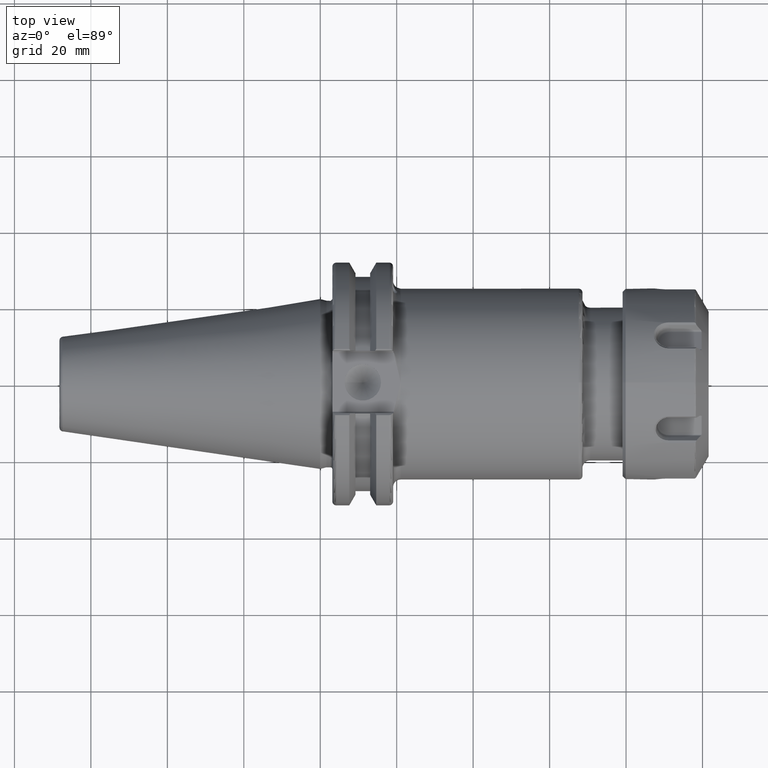
[diagram: clean part render]
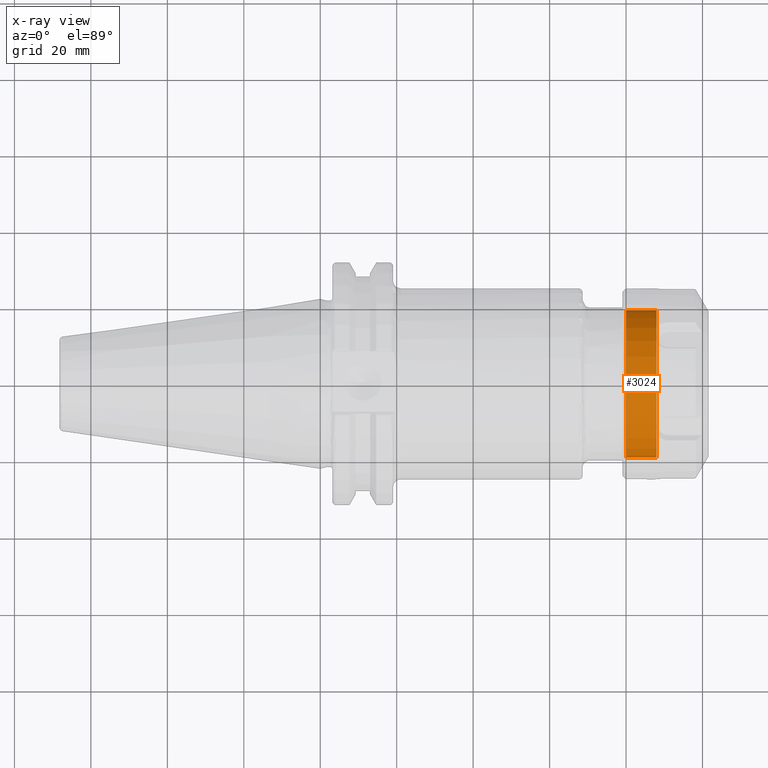
[diagram: x-ray — body ghosted, one internal face saturated and labeled with its STEP entity id]
A machine part, top view, then the same camera in x-ray: the body is ghosted and one INTERNAL B-rep face — a face not visible from any outside direction — is saturated and labeled: STEP entity #3024.
In plain terms, the highlighted cylindrical surface (bore or boss wall) has radius 19.3 mm, axis along (1, 0, 0).
Its self-contained STEP definition (entity closure, byte-faithful):
#313=CYLINDRICAL_SURFACE('',#3373,19.3);
#516=FACE_OUTER_BOUND('',#706,.T.);
#706=EDGE_LOOP('',(#2508,#2509,#2510,#2511,#2512));
#881=LINE('',#5288,#1054);
#1054=VECTOR('',#3985,19.3);
#1216=CIRCLE('',#3371,19.3);
#1217=CIRCLE('',#3372,19.3);
#1218=CIRCLE('',#3374,19.3);
#1434=VERTEX_POINT('',#5281);
#1435=VERTEX_POINT('',#5283);
#1436=VERTEX_POINT('',#5287);
#1808=EDGE_CURVE('',#1434,#1435,#1216,.T.);
#1809=EDGE_CURVE('',#1435,#1434,#1217,.T.);
#1810=EDGE_CURVE('',#1435,#1436,#881,.T.);
#1811=EDGE_CURVE('',#1436,#1436,#1218,.T.);
#2508=ORIENTED_EDGE('',*,*,#1808,.F.);
#2509=ORIENTED_EDGE('',*,*,#1809,.F.);
#2510=ORIENTED_EDGE('',*,*,#1810,.T.);
#2511=ORIENTED_EDGE('',*,*,#1811,.F.);
#2512=ORIENTED_EDGE('',*,*,#1810,.F.);
#3024=ADVANCED_FACE('',(#516),#313,.F.);
#3371=AXIS2_PLACEMENT_3D('',#5284,#3979,#3980);
#3372=AXIS2_PLACEMENT_3D('',#5285,#3981,#3982);
#3373=AXIS2_PLACEMENT_3D('',#5286,#3983,#3984);
#3374=AXIS2_PLACEMENT_3D('',#5289,#3986,#3987);
#3979=DIRECTION('center_axis',(1.,0.,0.));
#3980=DIRECTION('ref_axis',(0.,1.,0.));
#3981=DIRECTION('center_axis',(1.,0.,0.));
#3982=DIRECTION('ref_axis',(0.,1.,0.));
#3983=DIRECTION('center_axis',(1.,0.,0.));
#3984=DIRECTION('ref_axis',(0.,-1.,0.));
#3985=DIRECTION('',(1.,0.,0.));
#3986=DIRECTION('center_axis',(-1.,0.,0.));
#3987=DIRECTION('ref_axis',(0.,1.,0.));
#5281=CARTESIAN_POINT('',(-10.25,-19.2996618297511,0.114250852292867));
#5283=CARTESIAN_POINT('',(-10.25,19.3,2.36356832235439E-15));
#5284=CARTESIAN_POINT('Origin',(-10.25,0.,0.));
#5285=CARTESIAN_POINT('Origin',(-10.25,0.,0.));
#5286=CARTESIAN_POINT('Origin',(0.,0.,0.));
#5287=CARTESIAN_POINT('',(-2.39544826719,19.3,0.));
#5288=CARTESIAN_POINT('',(0.,19.3,2.36356832235439E-15));
#5289=CARTESIAN_POINT('Origin',(-2.39544826719,0.,0.));